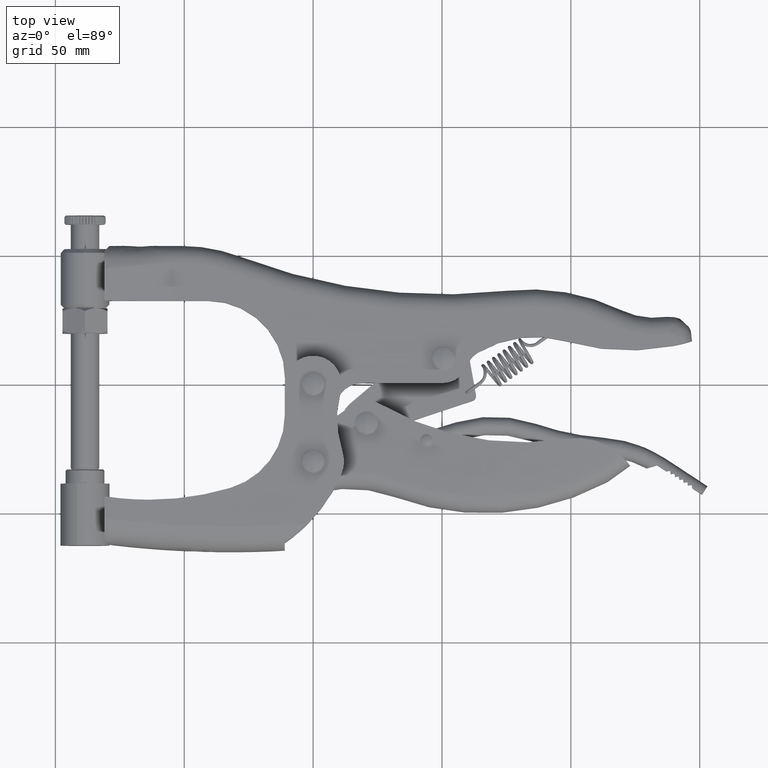
[diagram: clean part render]
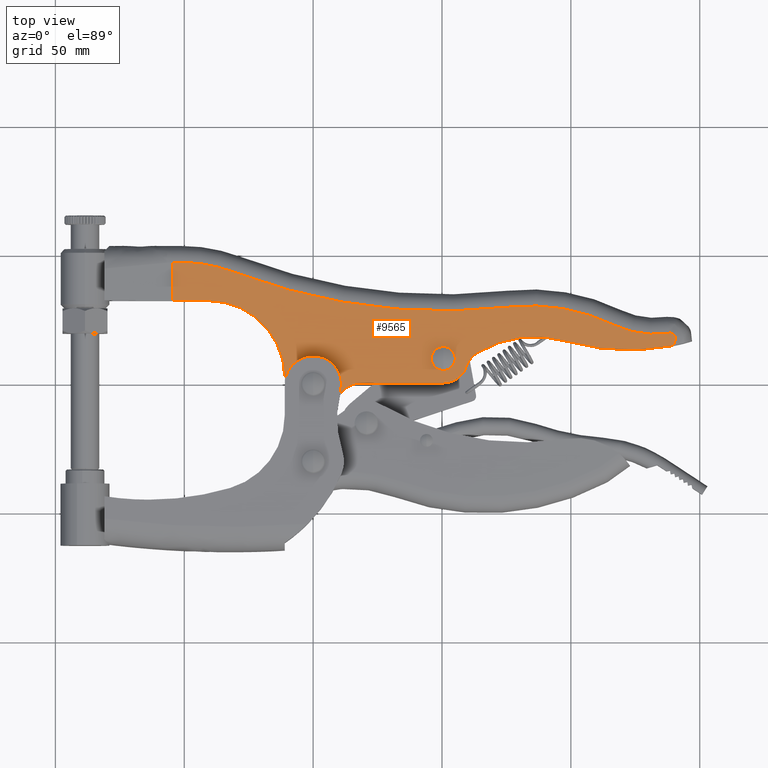
[diagram: same view with one face highlighted and labeled with its STEP entity id]
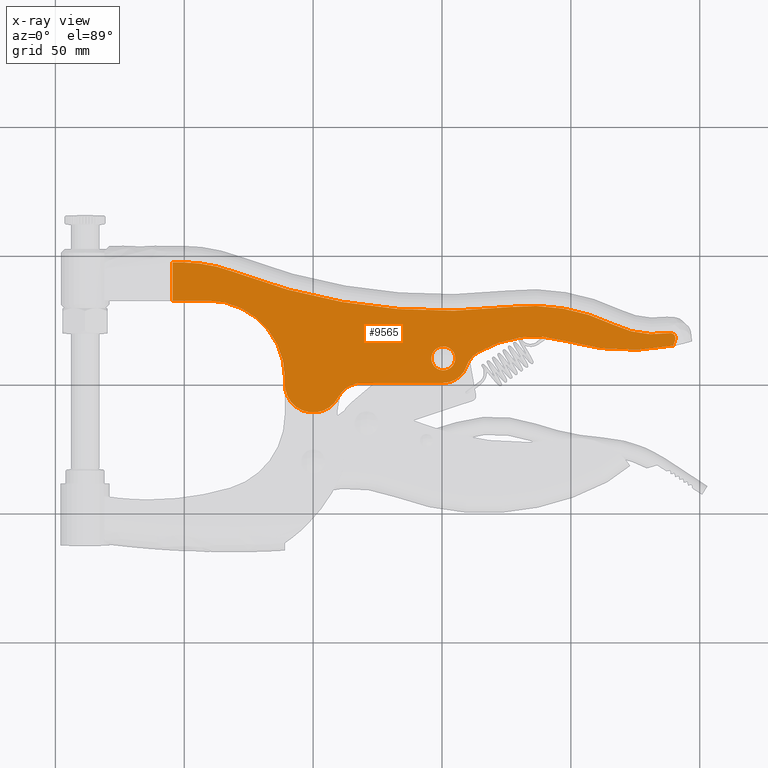
[diagram: x-ray of the same camera — body ghosted, the highlighted face saturated]
A machine part, top view. The second image highlights one B-rep face of the part: STEP entity #9565.
The next image is the same camera in x-ray: the body ghosted, the highlighted face saturated — about 0% of this face is hidden behind the body in this view.
In plain terms, the highlighted planar face has unit normal (0, 0, -1).
Its self-contained STEP definition (entity closure, byte-faithful):
#165 = CARTESIAN_POINT ( 'NONE',  ( 122.5425779057802100, 101.3000000000002000, 6.500000000000005300 ) ) ;
#169 = EDGE_CURVE ( 'NONE', #8046, #11268, #24907, .T. ) ;
#243 = ORIENTED_EDGE ( 'NONE', *, *, #13382, .F. ) ;
#276 = DIRECTION ( 'NONE',  ( -4.230566732181504600E-017, -1.913813176680103000E-018, 1.000000000000000000 ) ) ;
#300 = VECTOR ( 'NONE', #16585, 1000.000000000000000 ) ;
#345 = ORIENTED_EDGE ( 'NONE', *, *, #20870, .T. ) ;
#494 = CARTESIAN_POINT ( 'NONE',  ( -40.92370950928086200, 32.50000000000006400, 6.499999999999998200 ) ) ;
#740 = VERTEX_POINT ( 'NONE', #25607 ) ;
#775 = CARTESIAN_POINT ( 'NONE',  ( 97.99489198434018500, 16.79312977099240800, 6.500000000000004400 ) ) ;
#1158 = DIRECTION ( 'NONE',  ( -1.000000000000000000, 0.0000000000000000000, 0.0000000000000000000 ) ) ;
#1220 = DIRECTION ( 'NONE',  ( 4.230566732181504600E-017, 1.913813176680103000E-018, -1.000000000000000000 ) ) ;
#1333 = CARTESIAN_POINT ( 'NONE',  ( 50.50000000000008500, 10.00000000000002100, 6.500000000000001800 ) ) ;
#1403 = VERTEX_POINT ( 'NONE', #17609 ) ;
#1480 = CIRCLE ( 'NONE', #12069, 73.50000000000009900 ) ;
#1663 = CARTESIAN_POINT ( 'NONE',  ( 140.4915384632840900, 17.19812413035981200, 6.500000000000004400 ) ) ;
#1751 = CARTESIAN_POINT ( 'NONE',  ( 140.3443821520192200, 18.78645151553308400, 6.500000000000001800 ) ) ;
#1799 = VECTOR ( 'NONE', #9392, 1000.000000000000000 ) ;
#1860 = CARTESIAN_POINT ( 'NONE',  ( 138.6268813836086100, 19.89428749703766300, 6.500000000000005300 ) ) ;
#1861 = CARTESIAN_POINT ( 'NONE',  ( 86.00000000000007100, -24.50000000000004300, 6.500000000000003600 ) ) ;
#2209 = CIRCLE ( 'NONE', #4842, 36.50000000000008500 ) ;
#2221 = DIRECTION ( 'NONE',  ( 4.230566732181504600E-017, 1.913813176680103000E-018, -1.000000000000000000 ) ) ;
#2271 = DIRECTION ( 'NONE',  ( -1.000000000000000000, 0.0000000000000000000, 0.0000000000000000000 ) ) ;
#2297 = DIRECTION ( 'NONE',  ( -1.000000000000000000, -8.673617379884031600E-019, -7.885106708985468100E-017 ) ) ;
#2364 = DIRECTION ( 'NONE',  ( -1.000000000000000000, 0.0000000000000000000, 0.0000000000000000000 ) ) ;
#2366 = CARTESIAN_POINT ( 'NONE',  ( -40.92370950928086200, 32.50000000000005000, 6.499999999999998200 ) ) ;
#2398 = CARTESIAN_POINT ( 'NONE',  ( -2.749868375917977100E-016, -1.243978564842067200E-017, 6.500000000000000000 ) ) ;
#2854 = CARTESIAN_POINT ( 'NONE',  ( -51.31323152384921800, -11.20000000000004200, 6.499999999999997300 ) ) ;
#3040 = CARTESIAN_POINT ( 'NONE',  ( -10.97953181956316400, 0.6707317073170788700, 6.499999999999999100 ) ) ;
#3603 = VECTOR ( 'NONE', #22012, 1000.000000000000000 ) ;
#3769 = CARTESIAN_POINT ( 'NONE',  ( 140.4969063543177300, 17.22850080018778800, 6.500000000000005300 ) ) ;
#3861 = CARTESIAN_POINT ( 'NONE',  ( 140.2217888572530500, 18.98348487609789700, 6.500000000000007100 ) ) ;
#3866 = EDGE_CURVE ( 'NONE', #6128, #22774, #18170, .T. ) ;
#3950 = DIRECTION ( 'NONE',  ( -1.000000000000000000, 0.0000000000000000000, -4.034240641806522400E-017 ) ) ;
#3957 = EDGE_CURVE ( 'NONE', #11268, #8046, #11235, .T. ) ;
#3979 = ORIENTED_EDGE ( 'NONE', *, *, #11742, .F. ) ;
#4247 = EDGE_CURVE ( 'NONE', #26052, #24882, #1480, .T. ) ;
#4385 = EDGE_LOOP ( 'NONE', ( #26423, #25225, #345, #3979, #25867, #21444, #12144, #11016, #243, #16891, #4425, #21638, #26025, #25431, #9448, #18829, #21441 ) ) ;
#4425 = ORIENTED_EDGE ( 'NONE', *, *, #14454, .F. ) ;
#4684 = CIRCLE ( 'NONE', #27043, 10.00000000000000900 ) ;
#4812 = VERTEX_POINT ( 'NONE', #25188 ) ;
#4842 = AXIS2_PLACEMENT_3D ( 'NONE', #5133, #10136, #21645 ) ;
#5014 = DIRECTION ( 'NONE',  ( -4.230566732181504600E-017, -1.913813176680103000E-018, 1.000000000000000000 ) ) ;
#5133 = CARTESIAN_POINT ( 'NONE',  ( 132.5000000000002000, 55.87862161819399600, 6.500000000000005300 ) ) ;
#5619 = EDGE_LOOP ( 'NONE', ( #20338, #5677 ) ) ;
#5677 = ORIENTED_EDGE ( 'NONE', *, *, #3957, .T. ) ;
#5866 = CARTESIAN_POINT ( 'NONE',  ( 140.4987920852509000, 17.23929635466674500, 6.500000000000006200 ) ) ;
#5892 = CIRCLE ( 'NONE', #17378, 43.00000000000006400 ) ;
#5919 = EDGE_CURVE ( 'NONE', #27106, #4812, #16706, .T. ) ;
#5936 = AXIS2_PLACEMENT_3D ( 'NONE', #26585, #13892, #16033 ) ;
#5955 = CARTESIAN_POINT ( 'NONE',  ( 140.1804015840894200, 19.04253984619602800, 6.500000000000006200 ) ) ;
#6128 = VERTEX_POINT ( 'NONE', #17114 ) ;
#6292 = CIRCLE ( 'NONE', #8614, 226.4999999999995200 ) ;
#6329 = PLANE ( 'NONE',  #16276 ) ;
#6850 = CARTESIAN_POINT ( 'NONE',  ( 50.50000000000000000, 5.368585529236243700, 6.500000000000002700 ) ) ;
#7109 = EDGE_CURVE ( 'NONE', #19565, #15922, #17313, .T. ) ;
#7222 = EDGE_CURVE ( 'NONE', #15922, #9427, #16340, .T. ) ;
#7257 = LINE ( 'NONE', #20104, #3603 ) ;
#7575 = AXIS2_PLACEMENT_3D ( 'NONE', #1333, #1220, #1158 ) ;
#7833 = EDGE_CURVE ( 'NONE', #11640, #26052, #2209, .T. ) ;
#7927 = LINE ( 'NONE', #2366, #20573 ) ;
#7970 = CARTESIAN_POINT ( 'NONE',  ( 140.5598303221268000, 17.64821316833603900, 6.500000000000005300 ) ) ;
#8046 = VERTEX_POINT ( 'NONE', #20427 ) ;
#8068 = CARTESIAN_POINT ( 'NONE',  ( 139.8733424137960000, 19.39592726746656100, 6.500000000000004400 ) ) ;
#8107 = EDGE_CURVE ( 'NONE', #8431, #19565, #14317, .T. ) ;
#8422 = AXIS2_PLACEMENT_3D ( 'NONE', #165, #12919, #17076 ) ;
#8428 = CARTESIAN_POINT ( 'NONE',  ( -54.52033690712828900, 47.30000000000004700, 6.499999999999997300 ) ) ;
#8431 = VERTEX_POINT ( 'NONE', #20358 ) ;
#8600 = VERTEX_POINT ( 'NONE', #18497 ) ;
#8614 = AXIS2_PLACEMENT_3D ( 'NONE', #21261, #8646, #23390 ) ;
#8646 = DIRECTION ( 'NONE',  ( 4.230566732181504600E-017, 1.913813176680103000E-018, -1.000000000000000000 ) ) ;
#9060 = CARTESIAN_POINT ( 'NONE',  ( -40.92370950928086200, 2.500000000000005300, 6.499999999999998200 ) ) ;
#9176 = AXIS2_PLACEMENT_3D ( 'NONE', #2398, #2221, #2297 ) ;
#9192 = CARTESIAN_POINT ( 'NONE',  ( 68.97845940586759600, 3.771313301689765300, 6.500000000000002700 ) ) ;
#9260 = CARTESIAN_POINT ( 'NONE',  ( -54.52033690712828900, 32.50000000000004300, 6.499999999999997300 ) ) ;
#9392 = DIRECTION ( 'NONE',  ( -1.000000000000000000, 1.746322356576654600E-015, -4.230566732181495300E-017 ) ) ;
#9412 = EDGE_CURVE ( 'NONE', #740, #11095, #7257, .T. ) ;
#9427 = VERTEX_POINT ( 'NONE', #19486 ) ;
#9448 = ORIENTED_EDGE ( 'NONE', *, *, #7833, .T. ) ;
#9565 = ADVANCED_FACE ( 'NONE', ( #20363, #26731 ), #6329, .F. ) ;
#9568 = CARTESIAN_POINT ( 'NONE',  ( 18.72832080032818100, -9.499999999999964500, 6.500000000000000900 ) ) ;
#9983 = CARTESIAN_POINT ( 'NONE',  ( 140.1712491999751600, 15.90757631369223500, 6.500000000000006200 ) ) ;
#10080 = CARTESIAN_POINT ( 'NONE',  ( 140.5673599229323800, 17.95458219943126800, 6.500000000000003600 ) ) ;
#10136 = DIRECTION ( 'NONE',  ( 4.230566732181504600E-017, 1.913813176680103000E-018, -1.000000000000000000 ) ) ;
#10162 = CARTESIAN_POINT ( 'NONE',  ( 139.4670385182412800, 19.64687911885599900, 6.500000000000005300 ) ) ;
#11016 = ORIENTED_EDGE ( 'NONE', *, *, #8107, .F. ) ;
#11089 = DIRECTION ( 'NONE',  ( 4.230566732181495900E-017, 1.913813176680103000E-018, -1.000000000000000000 ) ) ;
#11095 = VERTEX_POINT ( 'NONE', #8428 ) ;
#11150 = DIRECTION ( 'NONE',  ( -1.000000000000000000, 0.0000000000000000000, -2.891205793294672500E-017 ) ) ;
#11235 = CIRCLE ( 'NONE', #22549, 4.631414470763761700 ) ;
#11268 = VERTEX_POINT ( 'NONE', #6850 ) ;
#11296 = DIRECTION ( 'NONE',  ( -1.000000000000000000, 0.0000000000000000000, 0.0000000000000000000 ) ) ;
#11412 = AXIS2_PLACEMENT_3D ( 'NONE', #9060, #23810, #11150 ) ;
#11623 = AXIS2_PLACEMENT_3D ( 'NONE', #12403, #276, #14904 ) ;
#11640 = VERTEX_POINT ( 'NONE', #20897 ) ;
#11742 = EDGE_CURVE ( 'NONE', #25169, #24788, #7927, .T. ) ;
#11744 = EDGE_CURVE ( 'NONE', #24882, #1403, #6292, .T. ) ;
#12054 = CARTESIAN_POINT ( 'NONE',  ( 140.4341318093093800, 16.90196129120682800, 6.500000000000005300 ) ) ;
#12069 = AXIS2_PLACEMENT_3D ( 'NONE', #14335, #14241, #12197 ) ;
#12142 = CARTESIAN_POINT ( 'NONE',  ( 140.5629667360715000, 18.03621033966939500, 6.500000000000005300 ) ) ;
#12144 = ORIENTED_EDGE ( 'NONE', *, *, #7109, .F. ) ;
#12197 = DIRECTION ( 'NONE',  ( -1.000000000000000000, 0.0000000000000000000, -4.720335989052529800E-017 ) ) ;
#12236 = CARTESIAN_POINT ( 'NONE',  ( 139.3602665587833900, 19.69627405123241500, 6.500000000000005300 ) ) ;
#12403 = CARTESIAN_POINT ( 'NONE',  ( -51.31323152384921800, -11.20000000000004200, 6.499999999999997300 ) ) ;
#12919 = DIRECTION ( 'NONE',  ( 4.230566732181504600E-017, 1.913813176680103000E-018, -1.000000000000000000 ) ) ;
#13382 = EDGE_CURVE ( 'NONE', #4812, #8431, #19107, .T. ) ;
#13892 = DIRECTION ( 'NONE',  ( 4.230566732181504600E-017, 1.913813176680103000E-018, -1.000000000000000000 ) ) ;
#14180 = CARTESIAN_POINT ( 'NONE',  ( 140.4838702530042000, 17.15564555276530400, 6.500000000000005300 ) ) ;
#14234 = B_SPLINE_CURVE_WITH_KNOTS ( 'NONE', 3,
 ( #22527, #18332, #9983, #24738, #12054, #26863, #14180, #1663, #16311, #3769, #18413, #5866, #20564, #7970, #22706, #10080, #24827, #12142, #26946, #14281, #1751, #16391, #3861, #18505, #5955, #20653, #8068, #22803, #10162, #24930, #12236, #27039, #14372, #1860, #16482 ),
 .UNSPECIFIED., .F., .F.,
 ( 4, 1, 1, 1, 1, 1, 1, 1, 2, 2, 1, 1, 2, 2, 1, 1, 1, 2, 2, 1, 1, 1, 2, 2, 4 ),
 ( 0.0000000000000000000, 0.06250000000008984500, 0.09375000000013408700, 0.1093750000001564600, 0.1171875000001676600, 0.1210937500001729700, 0.1230468750001756500, 0.1240234375001773700, 0.1245117187501779500, 0.1250000000001785500, 0.1875000000001751100, 0.2187500000001733900, 0.2343750000001725300, 0.2500000000001716400, 0.3750000000001811900, 0.4375000000001848000, 0.4687500000001830800, 0.4843750000001811900, 0.5000000000001793000, 0.6250000000000994800, 0.6875000000000680600, 0.7187500000000528500, 0.7343750000000453000, 0.7500000000000376400, 1.000000000000000000 ),
 .UNSPECIFIED. ) ;
#14241 = DIRECTION ( 'NONE',  ( -4.230566732181504600E-017, -1.913813176680103000E-018, 1.000000000000000000 ) ) ;
#14281 = CARTESIAN_POINT ( 'NONE',  ( 140.4800560500306400, 18.50024881006778400, 6.500000000000004400 ) ) ;
#14317 = CIRCLE ( 'NONE', #23168, 10.00000000000004400 ) ;
#14335 = CARTESIAN_POINT ( 'NONE',  ( 84.50000000000005700, -43.09612263507511900, 6.500000000000003600 ) ) ;
#14372 = CARTESIAN_POINT ( 'NONE',  ( 138.9806057746808700, 19.85416794349473000, 6.500000000000004400 ) ) ;
#14454 = EDGE_CURVE ( 'NONE', #8600, #27106, #4684, .T. ) ;
#14704 = CARTESIAN_POINT ( 'NONE',  ( 9.810072800171903800, -4.976190476190481600, 6.500000000000000000 ) ) ;
#14904 = DIRECTION ( 'NONE',  ( -1.000000000000000000, -8.006416042969870800E-015, -4.448008912761039700E-017 ) ) ;
#15855 = EDGE_CURVE ( 'NONE', #9427, #25169, #22923, .T. ) ;
#15922 = VERTEX_POINT ( 'NONE', #3040 ) ;
#16033 = DIRECTION ( 'NONE',  ( -1.000000000000000000, 0.0000000000000000000, 0.0000000000000000000 ) ) ;
#16161 = EDGE_CURVE ( 'NONE', #6128, #11640, #14234, .T. ) ;
#16239 = AXIS2_PLACEMENT_3D ( 'NONE', #24932, #24836, #24742 ) ;
#16276 = AXIS2_PLACEMENT_3D ( 'NONE', #2854, #11089, #26104 ) ;
#16311 = CARTESIAN_POINT ( 'NONE',  ( 140.4953059758880700, 17.21938461922865900, 6.500000000000006200 ) ) ;
#16340 = CIRCLE ( 'NONE', #16239, 30.00000000000006000 ) ;
#16391 = CARTESIAN_POINT ( 'NONE',  ( 140.2609118488129200, 18.92505025927679800, 6.500000000000003600 ) ) ;
#16482 = CARTESIAN_POINT ( 'NONE',  ( 138.2552457278869700, 19.83521519466559000, 6.500000000000005300 ) ) ;
#16485 = DIRECTION ( 'NONE',  ( -4.230566732181504600E-017, -1.913813176680103000E-018, 1.000000000000000000 ) ) ;
#16585 = DIRECTION ( 'NONE',  ( 8.673617379884033500E-019, -1.000000000000000000, -1.913813176680105300E-018 ) ) ;
#16706 = CIRCLE ( 'NONE', #7575, 9.500000000000028400 ) ;
#16891 = ORIENTED_EDGE ( 'NONE', *, *, #5919, .F. ) ;
#16995 = DIRECTION ( 'NONE',  ( -1.000000000000000000, -6.934358423975574800E-016, -4.230566732181495900E-017 ) ) ;
#17076 = DIRECTION ( 'NONE',  ( -1.000000000000000000, 0.0000000000000000000, -3.942553354492737700E-017 ) ) ;
#17114 = CARTESIAN_POINT ( 'NONE',  ( 139.7812561175175600, 15.00499450424626100, 6.500000000000005300 ) ) ;
#17313 = CIRCLE ( 'NONE', #9176, 11.00000000000002700 ) ;
#17378 = AXIS2_PLACEMENT_3D ( 'NONE', #1861, #16485, #3950 ) ;
#17609 = CARTESIAN_POINT ( 'NONE',  ( -30.40535163358366700, 43.43616529821825600, 6.499999999999999100 ) ) ;
#18170 = CIRCLE ( 'NONE', #8422, 88.00000000000012800 ) ;
#18332 = CARTESIAN_POINT ( 'NONE',  ( 139.9528398092111000, 15.36106519984166900, 6.500000000000005300 ) ) ;
#18413 = CARTESIAN_POINT ( 'NONE',  ( 140.4979701021977100, 17.23457926368775300, 6.500000000000004400 ) ) ;
#18497 = CARTESIAN_POINT ( 'NONE',  ( 63.82041680158502600, 12.33837793856546300, 6.500000000000002700 ) ) ;
#18505 = CARTESIAN_POINT ( 'NONE',  ( 140.1949624174414700, 19.02222687736011200, 6.500000000000007100 ) ) ;
#18606 = CARTESIAN_POINT ( 'NONE',  ( -54.52033690712828900, -11.20000000000004200, 6.499999999999997300 ) ) ;
#18829 = ORIENTED_EDGE ( 'NONE', *, *, #4247, .T. ) ;
#18938 = DIRECTION ( 'NONE',  ( 4.230566732181504600E-017, 1.913813176680103000E-018, -1.000000000000000000 ) ) ;
#19107 = LINE ( 'NONE', #26256, #1799 ) ;
#19486 = CARTESIAN_POINT ( 'NONE',  ( -10.92370950928085100, 2.500000000000005300, 6.499999999999999100 ) ) ;
#19565 = VERTEX_POINT ( 'NONE', #14704 ) ;
#19856 = CARTESIAN_POINT ( 'NONE',  ( 59.50232637721759900, 6.965511608515536000, 6.500000000000002700 ) ) ;
#20104 = CARTESIAN_POINT ( 'NONE',  ( -51.31323152384921800, 47.30000000000004700, 6.499999999999998200 ) ) ;
#20338 = ORIENTED_EDGE ( 'NONE', *, *, #169, .T. ) ;
#20358 = CARTESIAN_POINT ( 'NONE',  ( 18.72832080032818100, 0.5000000000000567300, 6.500000000000000900 ) ) ;
#20363 = FACE_BOUND ( 'NONE', #5619, .T. ) ;
#20427 = CARTESIAN_POINT ( 'NONE',  ( 50.50000000000000000, 14.63141447076377400, 6.500000000000002700 ) ) ;
#20564 = CARTESIAN_POINT ( 'NONE',  ( 140.5293661452537300, 17.41510875338999000, 6.500000000000005300 ) ) ;
#20573 = VECTOR ( 'NONE', #16995, 1000.000000000000000 ) ;
#20653 = CARTESIAN_POINT ( 'NONE',  ( 140.0599611125410000, 19.20550660368267500, 6.500000000000005300 ) ) ;
#20790 = EDGE_CURVE ( 'NONE', #22774, #8600, #5892, .T. ) ;
#20870 = EDGE_CURVE ( 'NONE', #11095, #24788, #21989, .T. ) ;
#20897 = CARTESIAN_POINT ( 'NONE',  ( 138.2552457278869700, 19.83521519466559000, 6.500000000000005300 ) ) ;
#21261 = CARTESIAN_POINT ( 'NONE',  ( 50.54567050565636800, 254.9761899143945200, 6.500000000000002700 ) ) ;
#21441 = ORIENTED_EDGE ( 'NONE', *, *, #11744, .T. ) ;
#21444 = ORIENTED_EDGE ( 'NONE', *, *, #7222, .F. ) ;
#21638 = ORIENTED_EDGE ( 'NONE', *, *, #20790, .F. ) ;
#21645 = DIRECTION ( 'NONE',  ( -1.000000000000000000, 0.0000000000000000000, -4.752667057470693200E-017 ) ) ;
#21989 = LINE ( 'NONE', #18606, #300 ) ;
#22012 = DIRECTION ( 'NONE',  ( -1.000000000000000000, -8.673617379884033500E-019, -4.230566732181495900E-017 ) ) ;
#22083 = CARTESIAN_POINT ( 'NONE',  ( 76.18118927388491100, 29.93159393954431000, 6.500000000000003600 ) ) ;
#22186 = CIRCLE ( 'NONE', #11623, 58.50000000000005700 ) ;
#22527 = CARTESIAN_POINT ( 'NONE',  ( 139.7812561175175600, 15.00499450424626100, 6.500000000000005300 ) ) ;
#22549 = AXIS2_PLACEMENT_3D ( 'NONE', #27292, #18938, #2364 ) ;
#22706 = CARTESIAN_POINT ( 'NONE',  ( 140.5690494104021600, 17.87017107649448600, 6.500000000000005300 ) ) ;
#22774 = VERTEX_POINT ( 'NONE', #775 ) ;
#22803 = CARTESIAN_POINT ( 'NONE',  ( 139.6100656427357500, 19.57106510270069000, 6.500000000000004400 ) ) ;
#22923 = CIRCLE ( 'NONE', #11412, 30.00000000000006000 ) ;
#23168 = AXIS2_PLACEMENT_3D ( 'NONE', #9568, #5014, #2271 ) ;
#23390 = DIRECTION ( 'NONE',  ( -1.000000000000000000, 0.0000000000000000000, -4.212352811422719300E-017 ) ) ;
#23810 = DIRECTION ( 'NONE',  ( -4.230566732181504600E-017, -1.913813176680103000E-018, 1.000000000000000000 ) ) ;
#23956 = DIRECTION ( 'NONE',  ( -4.230566732181504600E-017, -1.913813176680103000E-018, 1.000000000000000000 ) ) ;
#24032 = EDGE_CURVE ( 'NONE', #1403, #740, #22186, .T. ) ;
#24738 = CARTESIAN_POINT ( 'NONE',  ( 140.3578693990078000, 16.56688148648519700, 6.500000000000004400 ) ) ;
#24742 = DIRECTION ( 'NONE',  ( -1.000000000000000000, 0.0000000000000000000, -2.891205793294672500E-017 ) ) ;
#24788 = VERTEX_POINT ( 'NONE', #9260 ) ;
#24827 = CARTESIAN_POINT ( 'NONE',  ( 140.5649801478853600, 18.00847546031236500, 6.500000000000004400 ) ) ;
#24836 = DIRECTION ( 'NONE',  ( -4.230566732181504600E-017, -1.913813176680103000E-018, 1.000000000000000000 ) ) ;
#24882 = VERTEX_POINT ( 'NONE', #22083 ) ;
#24907 = CIRCLE ( 'NONE', #5936, 4.631414470763761700 ) ;
#24930 = CARTESIAN_POINT ( 'NONE',  ( 139.4033007351084400, 19.67685193260932400, 6.500000000000005300 ) ) ;
#24932 = CARTESIAN_POINT ( 'NONE',  ( -40.92370950928086200, 2.500000000000005300, 6.499999999999998200 ) ) ;
#25169 = VERTEX_POINT ( 'NONE', #494 ) ;
#25188 = CARTESIAN_POINT ( 'NONE',  ( 50.50000000000008500, 0.4999999999999977200, 6.500000000000001800 ) ) ;
#25225 = ORIENTED_EDGE ( 'NONE', *, *, #9412, .T. ) ;
#25431 = ORIENTED_EDGE ( 'NONE', *, *, #16161, .T. ) ;
#25607 = CARTESIAN_POINT ( 'NONE',  ( -51.31323152384898400, 47.30000000000004700, 6.499999999999998200 ) ) ;
#25867 = ORIENTED_EDGE ( 'NONE', *, *, #15855, .F. ) ;
#26025 = ORIENTED_EDGE ( 'NONE', *, *, #3866, .F. ) ;
#26052 = VERTEX_POINT ( 'NONE', #26101 ) ;
#26101 = CARTESIAN_POINT ( 'NONE',  ( 116.5727272727274900, 23.03700193415463500, 6.500000000000005300 ) ) ;
#26104 = DIRECTION ( 'NONE',  ( -1.000000000000000000, -8.673617379884033500E-019, -4.230566732181495900E-017 ) ) ;
#26256 = CARTESIAN_POINT ( 'NONE',  ( 50.50000000000008500, 0.5000000000000012200, 6.500000000000001800 ) ) ;
#26423 = ORIENTED_EDGE ( 'NONE', *, *, #24032, .T. ) ;
#26585 = CARTESIAN_POINT ( 'NONE',  ( 50.50000000000000000, 10.00000000000000900, 6.500000000000001800 ) ) ;
#26731 = FACE_OUTER_BOUND ( 'NONE', #4385, .T. ) ;
#26863 = CARTESIAN_POINT ( 'NONE',  ( 140.4680010921566100, 17.07085799814891700, 6.500000000000005300 ) ) ;
#26946 = CARTESIAN_POINT ( 'NONE',  ( 140.5427478910668500, 18.23949468884971000, 6.500000000000004400 ) ) ;
#27039 = CARTESIAN_POINT ( 'NONE',  ( 139.3374072215052300, 19.70614957094568400, 6.500000000000005300 ) ) ;
#27043 = AXIS2_PLACEMENT_3D ( 'NONE', #9192, #23956, #11296 ) ;
#27106 = VERTEX_POINT ( 'NONE', #19856 ) ;
#27292 = CARTESIAN_POINT ( 'NONE',  ( 50.50000000000000000, 10.00000000000000900, 6.500000000000001800 ) ) ;